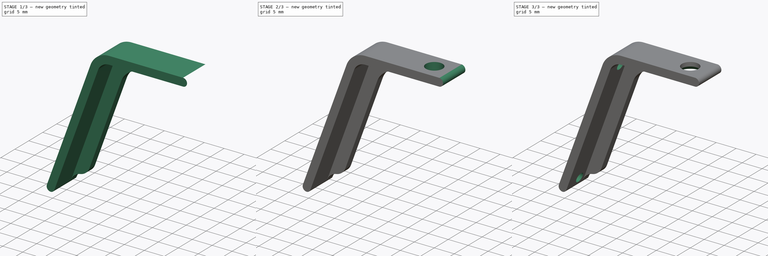
[diagram: build sequence overview — one tinted view per stage of 3, left to right]
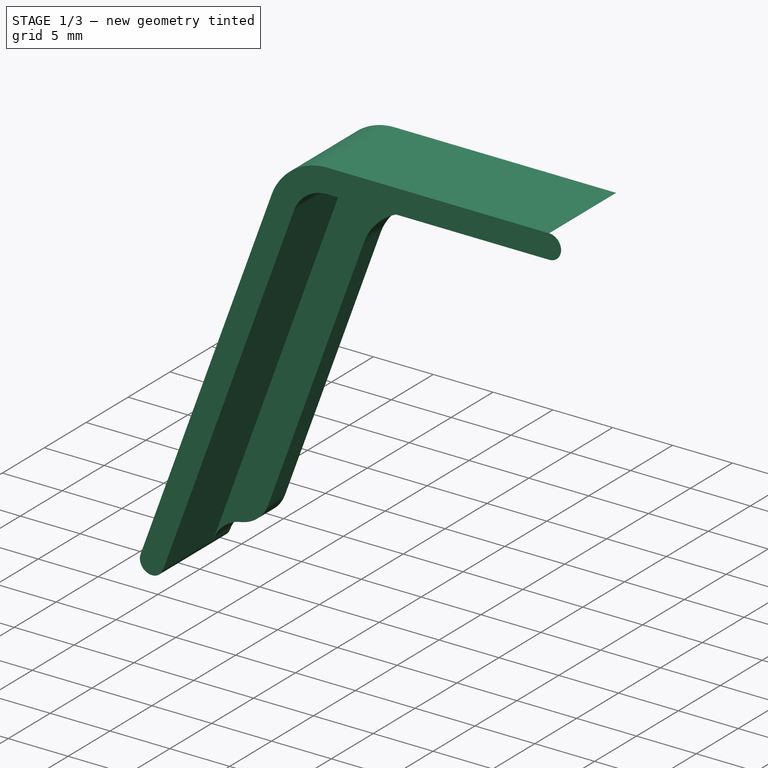
[diagram: stage 1 of 3 — iso view after this stage's code; geometry added in this stage tinted green]
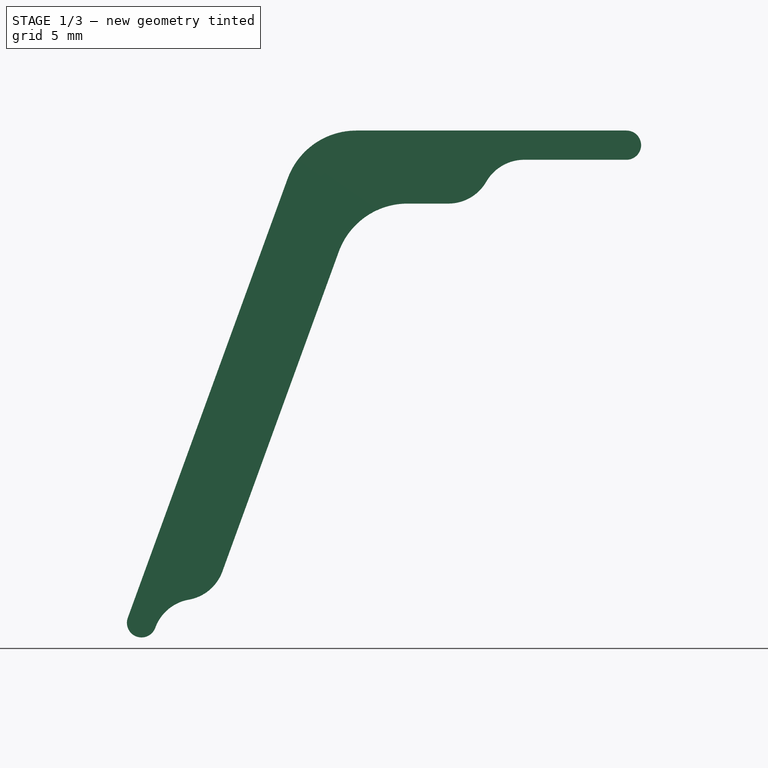
[diagram: stage 1 of 3 — front view after this stage's code; geometry added in this stage tinted green]
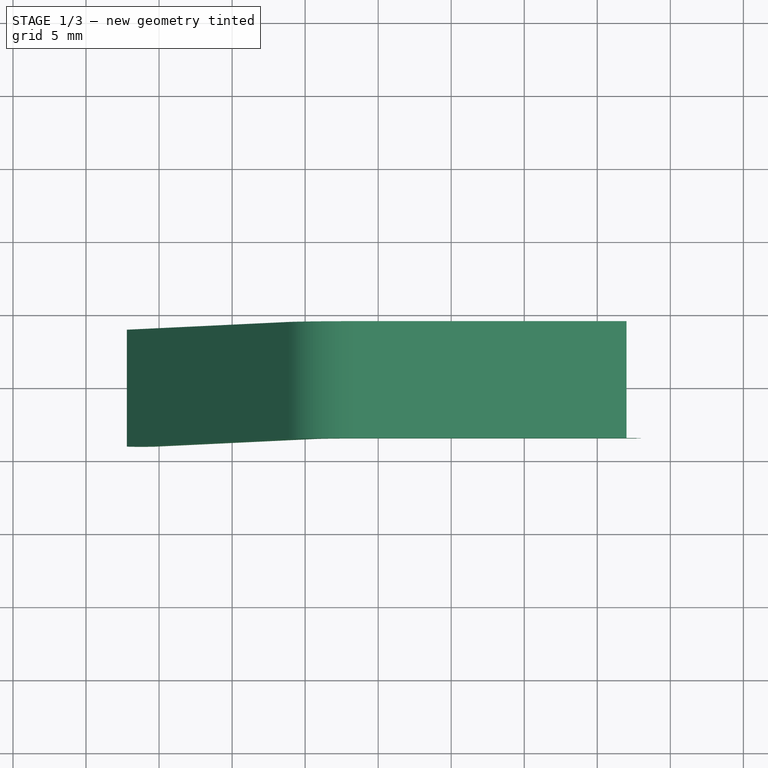
[diagram: stage 1 of 3 — top view after this stage's code; geometry added in this stage tinted green]
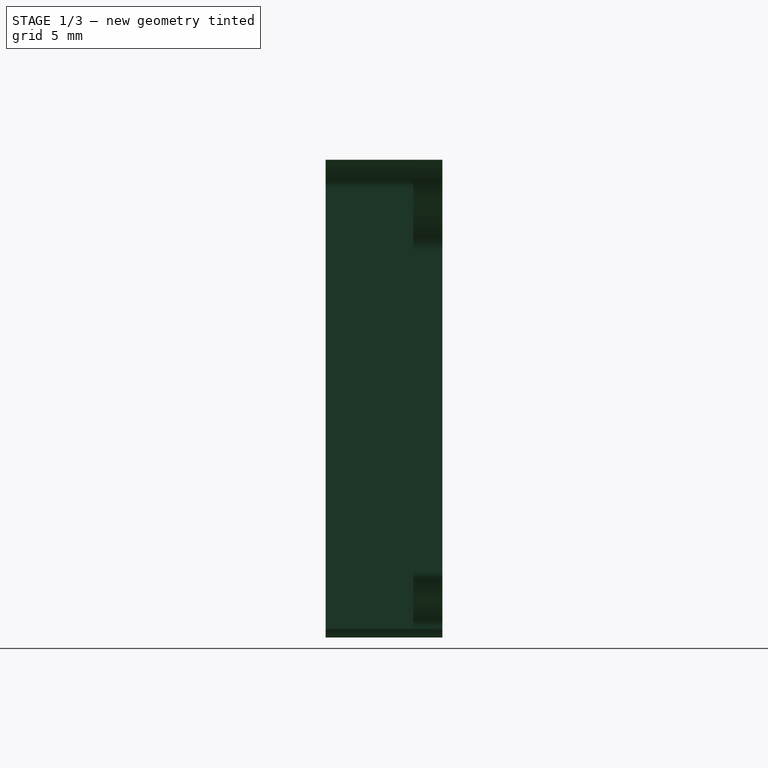
[diagram: stage 1 of 3 — right view after this stage's code; geometry added in this stage tinted green]
FCSTD DOCUMENT  (FreeCAD 1.0R39109 (Git))
Label: Bracket
License: All rights reserved
LicenseURL: http://en.wikipedia.org/wiki/All_rights_reserved
objects: Sketcher::SketchObject×5, PartDesign::Pocket×3, PartDesign::Pad×2, PartDesign::Chamfer×1, PartDesign::Body×1
note: 29 computed .brp shape members not serialized (recipe doc carries the construction recipe); baked Part::Feature solids carry a one-line shape summary decoded from their .brp

FEATURE [Sketcher::SketchObject] Sketch
  ArcFitTolerance = 1e-06
  AttachmentSupport = -> [XZ_Plane]
  FullyConstrained = true
  MakeInternals = false
  MapMode = 5
  Placement = pos=(0,0,0) rot=(1,0,0;1.5708rad)
  sketch-geometry (10):
    g0: LineSegment StartX=-1.19743 StartY=-3.2899 StartZ=0 EndX=-12.1421 EndY=-33.3601 EndZ=0
    g1: LineSegment StartX=3.50104 StartY=0 StartZ=0 EndX=22 EndY=0 EndZ=0
    g2: ArcOfCircle CenterX=3.50104 CenterY=-5 CenterZ=0 NormalX=0 NormalY=0 NormalZ=1 AngleXU=0 Radius=5 StartAngle=1.5708 EndAngle=2.79253
    g3: LineSegment StartX=-10.2627 StartY=-34.0441 StartZ=0 EndX=0.68196 EndY=-3.97394 EndZ=0
    g4: LineSegment StartX=3.50104 StartY=-2 StartZ=0 EndX=22 EndY=-2 EndZ=0
    g5: ArcOfCircle CenterX=3.50104 CenterY=-5 CenterZ=0 NormalX=0 NormalY=0 NormalZ=1 AngleXU=0 Radius=3 StartAngle=1.5708 EndAngle=2.79253
    g6: LineSegment [constr] StartX=3.50104 StartY=0 StartZ=0 EndX=3.50104 EndY=-2 EndZ=0
    g7: LineSegment [constr] StartX=-1.19743 StartY=-3.2899 StartZ=0 EndX=0.68196 EndY=-3.97394 EndZ=0
    g8: ArcOfCircle CenterX=22 CenterY=-1 CenterZ=0 NormalX=0 NormalY=0 NormalZ=1 AngleXU=0 Radius=1 StartAngle=4.71239 EndAngle=7.85398
    g9: ArcOfCircle CenterX=-11.2024 CenterY=-33.7021 CenterZ=0 NormalX=0 NormalY=0 NormalZ=1 AngleXU=0 Radius=1 StartAngle=2.79253 EndAngle=5.93412
  constraints (25):
    c: PointOnObject(g1,g-1)
    c: Horizontal(g1)
    c: Tangent(g2,g0) = -1.5708
    c: Tangent(g2,g1) = 1.5708
    c: Horizontal(g4)
    c: Tangent(g5,g4) = 1.5708
    c: Parallel(g3,g0)
    c: Coincident(g6,g1)
    c: Coincident(g6,g4)
    c: Coincident(g7,g0)
    c: Coincident(g7,g3)
    c: Perpendicular(g7,g0)
    c: Perpendicular(g6,g4)
    c: Coincident(g3,g5)
    c: Equal(g7,g6)
    c: Tangent(g8,g4) = -1.5708
    c: Tangent(g8,g1) = 1.5708
    c: Tangent(g9,g0) = -1.5708
    c: Tangent(g9,g3) = -1.5708
    c: DistanceY(g6,g6) = 2
    c: DistanceX(g-1,g1) = 22
    c: PointOnObject(g-1,g0)
    c: Angle(g-2,g0) = 2.79253
    c: Radius(g2) = 5
    c: Distance(g0,g0) = 32
FEATURE [PartDesign::Pad] Pad
  Direction = (0,-1,2e-16)
  Length = 8
  Length2 = 10
  Midplane = true
  Placement = pos=(0,0,0) rot=(1,0,0;1.5708rad)
  Profile = -> Sketch
  ReferenceAxis = -> Sketch [N_Axis]
  Refine = true
  Suppressed = false
  Type = 0
FEATURE [Sketcher::SketchObject] Sketch001
  ArcFitTolerance = 1e-06
  AttachmentSupport = -> [XY_Plane]
  FullyConstrained = true
  MakeInternals = false
  MapMode = 5
  sketch-geometry (1):
    g0: Circle CenterX=18 CenterY=0 CenterZ=0 NormalX=0 NormalY=0 NormalZ=1 AngleXU=0 Radius=2.1
  constraints (3):
    c: PointOnObject(g0,g-1)
    c: Diameter(g0) = 4.2
    c: DistanceX(g-1,g0) = 18
FEATURE [Sketcher::SketchObject] Sketch003  label="Stiffener"
  ArcFitTolerance = 1e-06
  AttachmentOffset = pos=(0,0,-4) rot=(0,0,1;0rad)
  AttachmentSupport = -> [XZ_Plane]
  FullyConstrained = true
  MakeInternals = false
  MapMode = 5
  Placement = pos=(0,4,-9e-16) rot=(1,0,0;1.5708rad)
  sketch-geometry (14):
    g0: LineSegment StartX=-1.19743 StartY=-3.2899 StartZ=0 EndX=-12.1421 EndY=-33.3601 EndZ=0
    g1: LineSegment StartX=3.50104 StartY=0 StartZ=0 EndX=15 EndY=0 EndZ=0
    g2: ArcOfCircle CenterX=3.50104 CenterY=-5 CenterZ=0 NormalX=0 NormalY=0 NormalZ=1 AngleXU=0 Radius=5 StartAngle=1.5708 EndAngle=2.79253
    g3: LineSegment [constr] StartX=3.50104 StartY=0 StartZ=0 EndX=3.50104 EndY=-5 EndZ=0
    g4: LineSegment [constr] StartX=-1.19743 StartY=-3.2899 StartZ=0 EndX=3.50104 EndY=-5 EndZ=0
    g5: ArcOfCircle CenterX=9.80385 CenterY=-2 CenterZ=0 NormalX=0 NormalY=0 NormalZ=1 AngleXU=0 Radius=3 StartAngle=4.71239 EndAngle=5.75959
    g6: ArcOfCircle CenterX=-8.4855 CenterY=-29.1613 CenterZ=0 NormalX=0 NormalY=0 NormalZ=1 AngleXU=0 Radius=3 StartAngle=4.88692 EndAngle=5.93412
    g7: ArcOfCircle CenterX=-7.44361 CenterY=-35.0702 CenterZ=0 NormalX=0 NormalY=0 NormalZ=1 AngleXU=0 Radius=3 StartAngle=1.74533 EndAngle=2.79253
    g8: LineSegment StartX=15 StartY=0 StartZ=0 EndX=15 EndY=-2 EndZ=0
    g9: LineSegment StartX=-12.1421 StartY=-33.3601 StartZ=0 EndX=-10.2627 EndY=-34.0441 EndZ=0
    g10: ArcOfCircle CenterX=15 CenterY=-5 CenterZ=0 NormalX=0 NormalY=0 NormalZ=1 AngleXU=0 Radius=3 StartAngle=1.5708 EndAngle=2.61799
    g11: LineSegment StartX=-5.66642 StartY=-30.1874 StartZ=0 EndX=2.30361 EndY=-8.2899 EndZ=0
    g12: LineSegment StartX=9.80385 StartY=-5 StartZ=0 EndX=7.00208 EndY=-5 EndZ=0
    g13: ArcOfCircle CenterX=7.00208 CenterY=-10 CenterZ=0 NormalX=0 NormalY=0 NormalZ=1 AngleXU=0 Radius=5 StartAngle=1.5708 EndAngle=2.79253
  constraints (40):
    c: PointOnObject(g1,g-1)
    c: Horizontal(g1)
    c: Tangent(g2,g0) = -1.5708
    c: Tangent(g2,g1) = 1.5708
    c: Coincident(g3,g1)
    c: Coincident(g4,g0)
    c: Perpendicular(g4,g0)
    c: Equal(g4,g3)
    c: DistanceY(g3,g3) = 5
    c: DistanceX(g-1,g1) = 15
    c: PointOnObject(g-1,g0)
    c: Distance(g0,g0) = 32
    c: Tangent(g7,g6) = 1.5708
    c: Equal(g7,g6)
    c: Coincident(g8,g1)
    c: Coincident(g9,g0)
    c: Coincident(g7,g9)
    c: Perpendicular(g1,g8)
    c: Coincident(g10,g8)
    c: Perpendicular(g10,g8)
    c: Tangent(g10,g5) = 1.5708
    c: Perpendicular(g0,g9)
    c: Perpendicular(g7,g9,g7) = 1.5708
    c: Equal(g5,g10)
    c: Equal(g5,g6)
    c: Equal(g9,g8)
    c: DistanceY(g8,g8) = 2
    c: Angle(g-2,g0) = 2.79253
    c: Radius(g2) = 5
    c: Horizontal(g12)
    c: PointOnObject(g2,g12)
    c: PointOnObject(g2,g11)
    c: Perpendicular(g11,g4)
    c: Perpendicular(g12,g3)
    c: Tangent(g13,g12) = -1.5708
    c: Tangent(g13,g11) = 1.5708
    c: Radius(g13) = 5
    c: Tangent(g12,g5) = 1.5708
    c: Tangent(g11,g6) = -1.5708
    c: PointOnObject(g10,g12)
FEATURE [PartDesign::Pad] Pad001  label="Stiffener001"
  BaseFeature = -> Pad
  Direction = (0,-1,2e-16)
  Length = 2
  Length2 = 10
  Placement = pos=(0,0,0) rot=(1,0,0;1.5708rad)
  Profile = -> Sketch003
  ReferenceAxis = -> Sketch003 [N_Axis]
  Refine = true
  Suppressed = false
  Type = 0
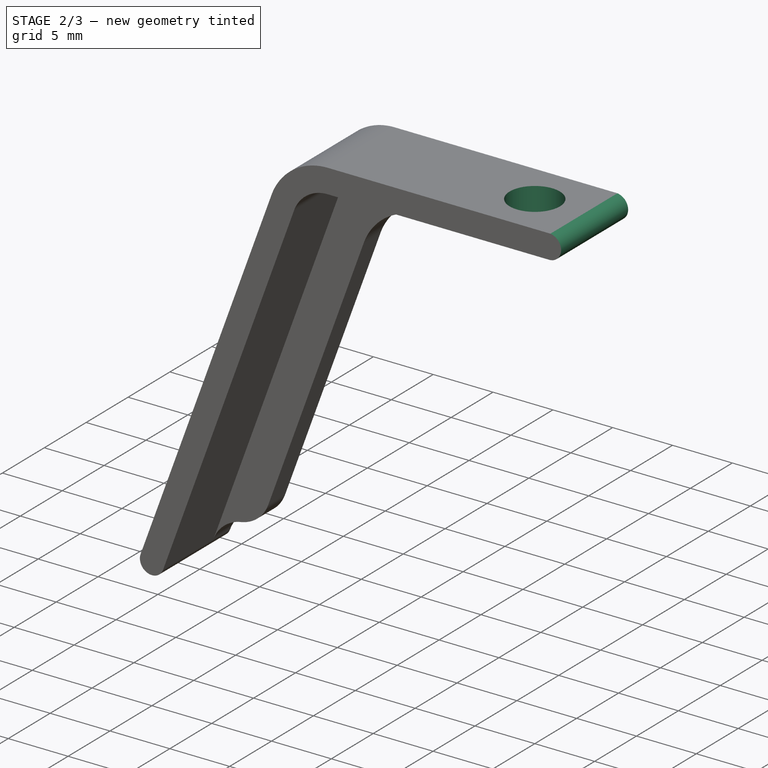
[diagram: stage 2 of 3 — iso view after this stage's code; geometry added in this stage tinted green]
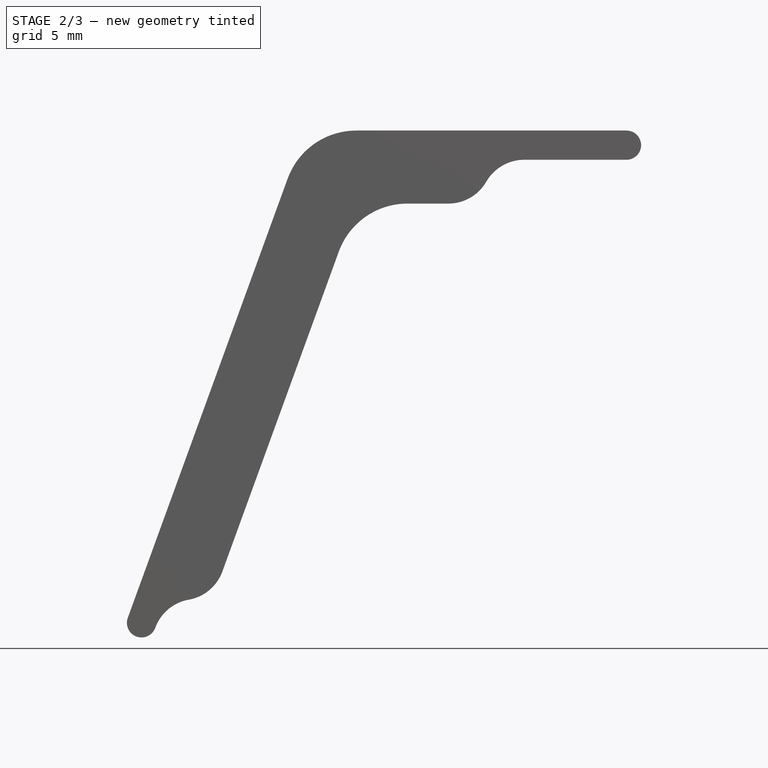
[diagram: stage 2 of 3 — front view after this stage's code; geometry added in this stage tinted green]
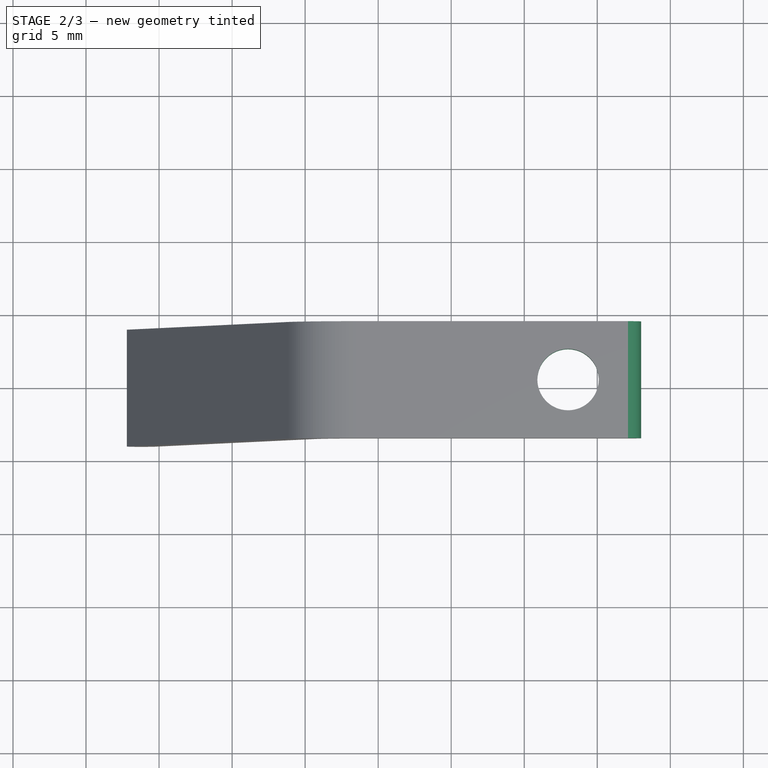
[diagram: stage 2 of 3 — top view after this stage's code; geometry added in this stage tinted green]
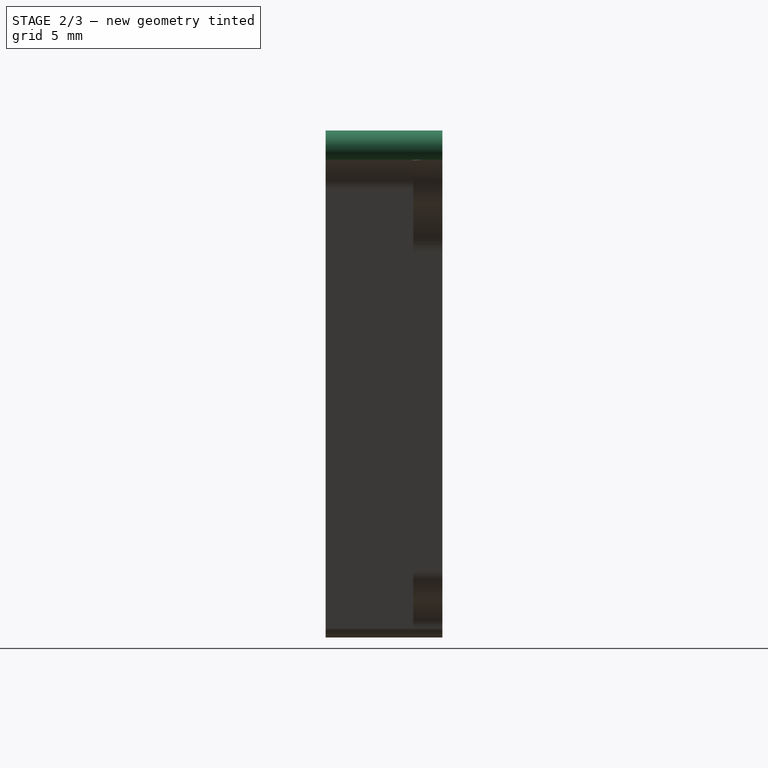
[diagram: stage 2 of 3 — right view after this stage's code; geometry added in this stage tinted green]
FEATURE [Sketcher::SketchObject] Sketch004
  ArcFitTolerance = 1e-06
  AttachmentOffset = pos=(0,0,-2) rot=(0,0,1;0rad)
  AttachmentSupport = -> [XY_Plane]
  FullyConstrained = true
  MakeInternals = false
  MapMode = 5
  Placement = pos=(0,0,-2) rot=(0,0,1;0rad)
  sketch-geometry (1):
    g0: Circle CenterX=18 CenterY=0 CenterZ=0 NormalX=0 NormalY=0 NormalZ=1 AngleXU=0 Radius=4.1
  constraints (3):
    c: PointOnObject(g0,g-1)
    c: Diameter(g0) = 8.2
    c: DistanceX(g-1,g0) = 18
FEATURE [PartDesign::Pocket] Pocket002  label="DeskMountCutout"
  BaseFeature = -> Pad001
  Direction = (0,0,-1)
  Length = 5
  Length2 = 5
  Placement = pos=(0,0,0) rot=(1,0,0;1.5708rad)
  Profile = -> Sketch004
  ReferenceAxis = -> Sketch004 [N_Axis]
  Refine = true
  Suppressed = false
  Type = 1
FEATURE [PartDesign::Pocket] Pocket  label="DeskMount"
  BaseFeature = -> Pocket002
  Direction = (0,0,-1)
  Length = 5
  Length2 = 5
  Placement = pos=(0,0,0) rot=(1,0,0;1.5708rad)
  Profile = -> Sketch001
  ReferenceAxis = -> Sketch001 [N_Axis]
  Refine = true
  Suppressed = false
  Type = 0
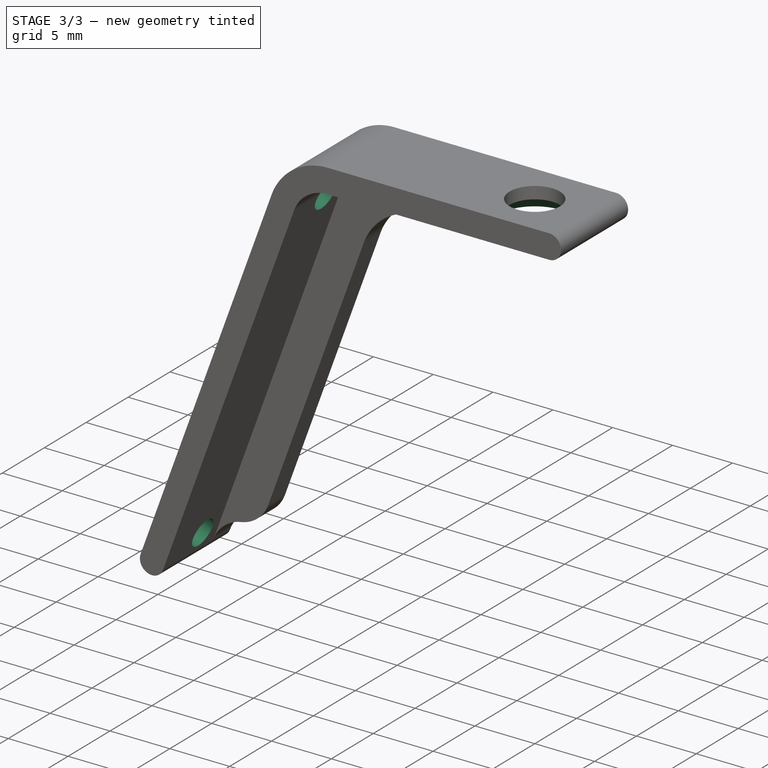
[diagram: stage 3 of 3 — iso view after this stage's code; geometry added in this stage tinted green]
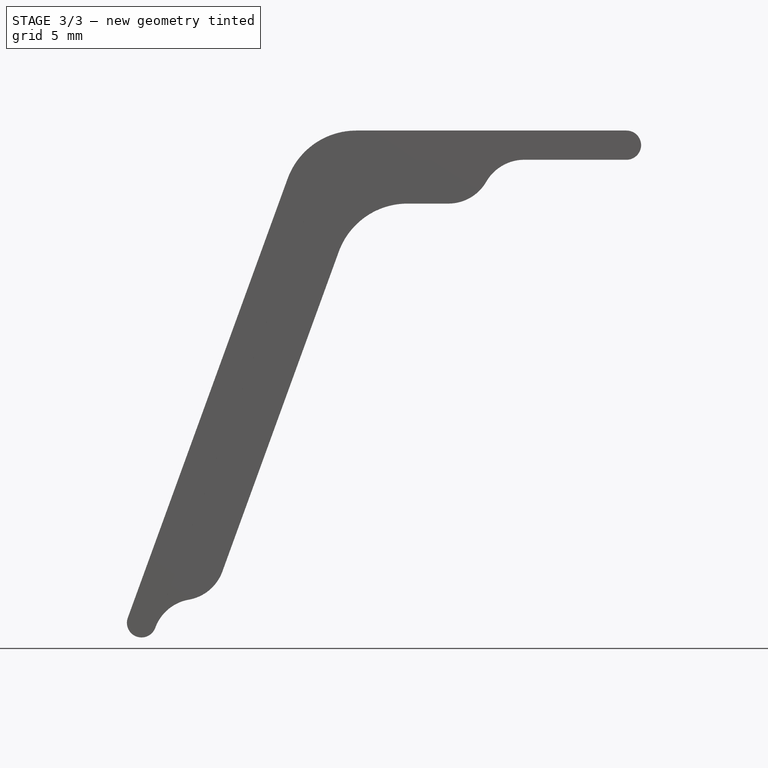
[diagram: stage 3 of 3 — front view after this stage's code; geometry added in this stage tinted green]
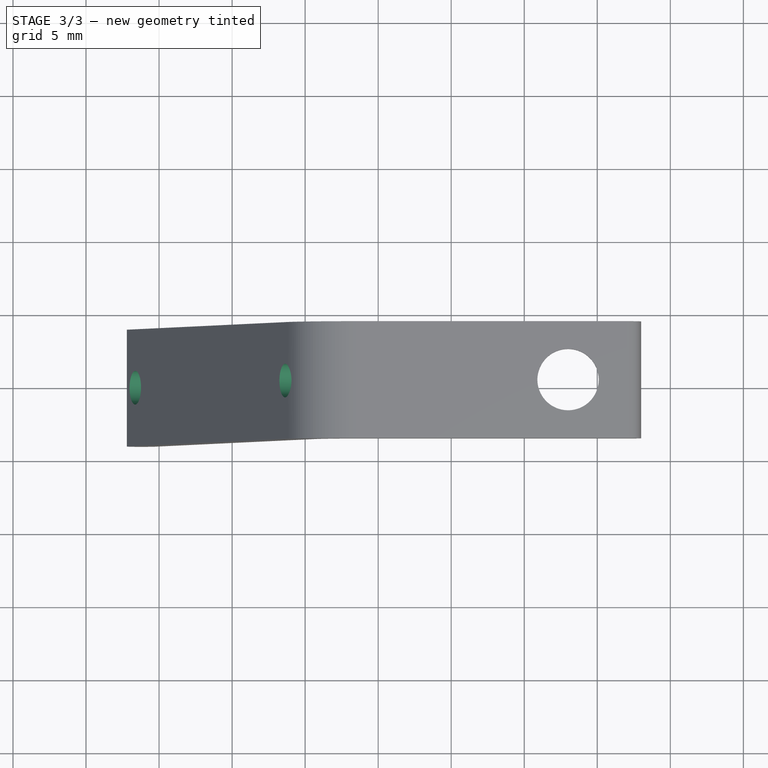
[diagram: stage 3 of 3 — top view after this stage's code; geometry added in this stage tinted green]
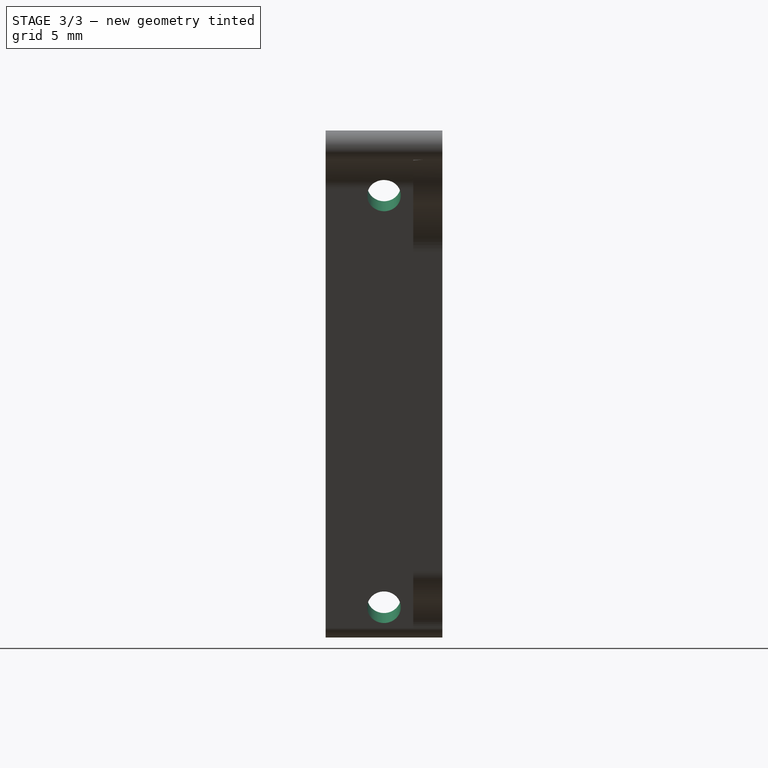
[diagram: stage 3 of 3 — right view after this stage's code; geometry added in this stage tinted green]
FEATURE [Sketcher::SketchObject] Sketch002
  ArcFitTolerance = 1e-06
  AttachmentSupport = -> [Pocket]
  ExternalGeometry = -> [Pocket]
  FullyConstrained = true
  MakeInternals = false
  MapMode = 5
  Placement = pos=(1.7e-15,0,-6e-16) rot=(-0.573576,0,0.819152;3.14159rad)
  sketch-geometry (3):
    g0: Circle CenterX=4 CenterY=0 CenterZ=0 NormalX=0 NormalY=0 NormalZ=1 AngleXU=0 Radius=1.15
    g1: Circle CenterX=34 CenterY=0 CenterZ=0 NormalX=0 NormalY=0 NormalZ=1 AngleXU=0 Radius=1.15
    g2: GeomPoint X=19.501 Y=4 Z=0
  constraints (7):
    c: PointOnObject(g0,g-1)
    c: PointOnObject(g1,g-1)
    c: Symmetric(g-3,g-4,g2)
    c: Equal(g0,g1)
    c: Diameter(g0) = 2.3
    c: DistanceX(g0,g1) = 30
    c: DistanceX(g0) = 4
FEATURE [PartDesign::Pocket] Pocket001  label="DeviceMount"
  BaseFeature = -> Pocket
  Direction = (0.939693,0,-0.34202)
  Length = 5
  Length2 = 5
  Placement = pos=(0,0,0) rot=(1,0,0;1.5708rad)
  Profile = -> Sketch002
  ReferenceAxis = -> Sketch002 [N_Axis]
  Refine = true
  Suppressed = false
  Type = 1
FEATURE [PartDesign::Chamfer] Chamfer
  Angle = 45
  Base = -> Pocket001 [Edge59]
  BaseFeature = -> Pocket001
  ChamferType = 0
  FlipDirection = false
  Placement = pos=(0,0,0) rot=(1,0,0;1.5708rad)
  Refine = true
  Size = 0.99
  Size2 = 1
  SupportTransform = false
  Suppressed = false
  UseAllEdges = false
FEATURE [PartDesign::Body] Body
  AllowCompound = false
  Group = -> [Sketch,Pad,Pad001,Pocket002,Sketch001,Pocket,Sketch002,Pocket001,Sketch003,Sketch004,Chamfer]
  Origin = -> Origin
  Tip = -> Chamfer
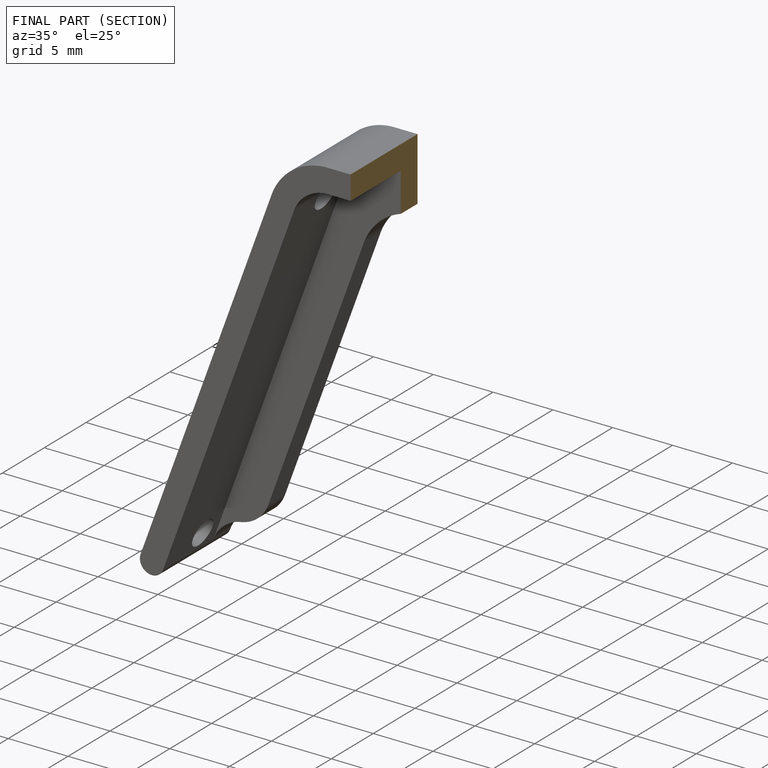
[diagram: finished part — half-section view (interior)]
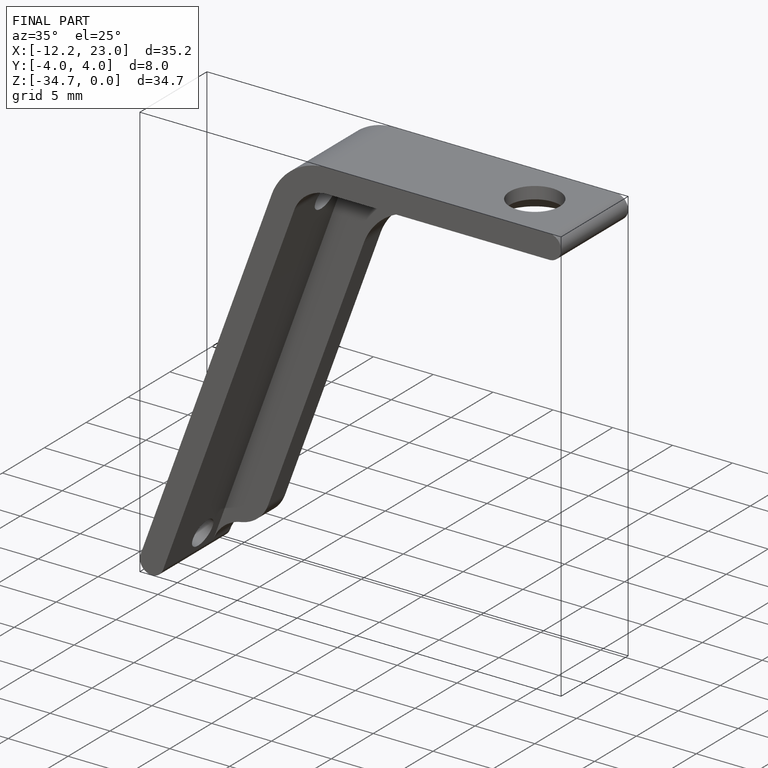
[diagram: finished part — iso view with bounding-box wireframe]
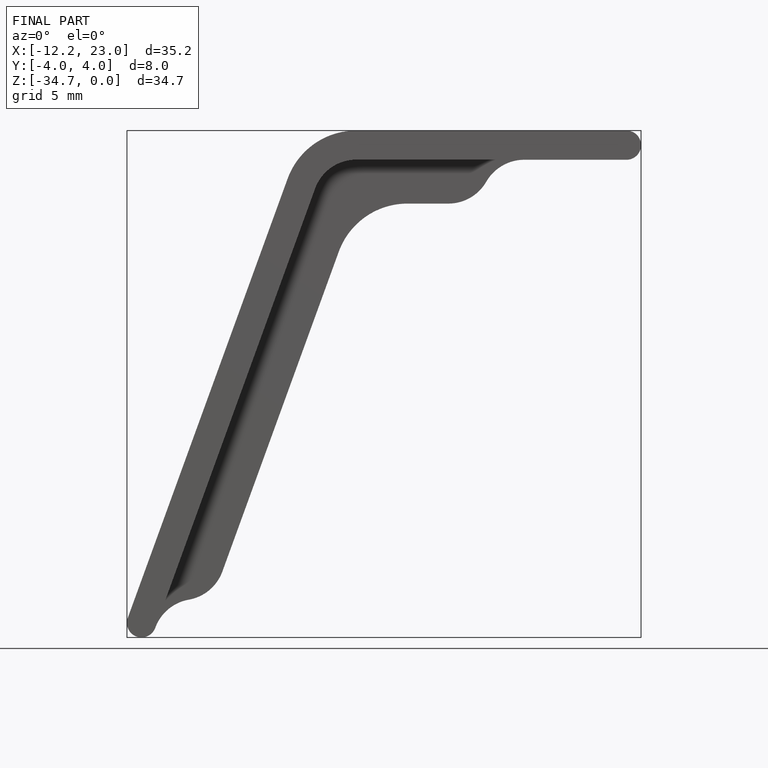
[diagram: finished part — front view with bounding-box wireframe]
